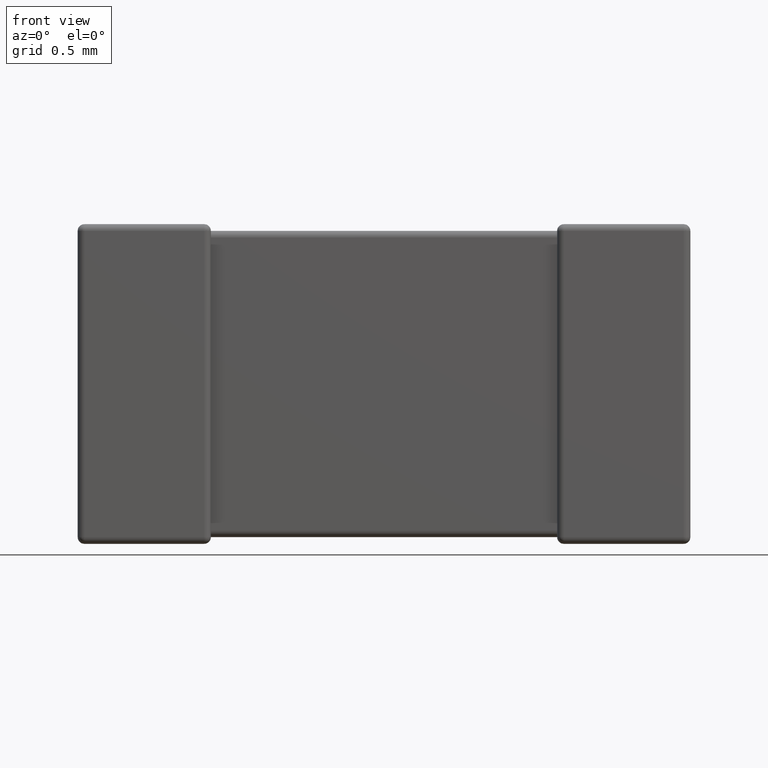
[diagram: clean part render]
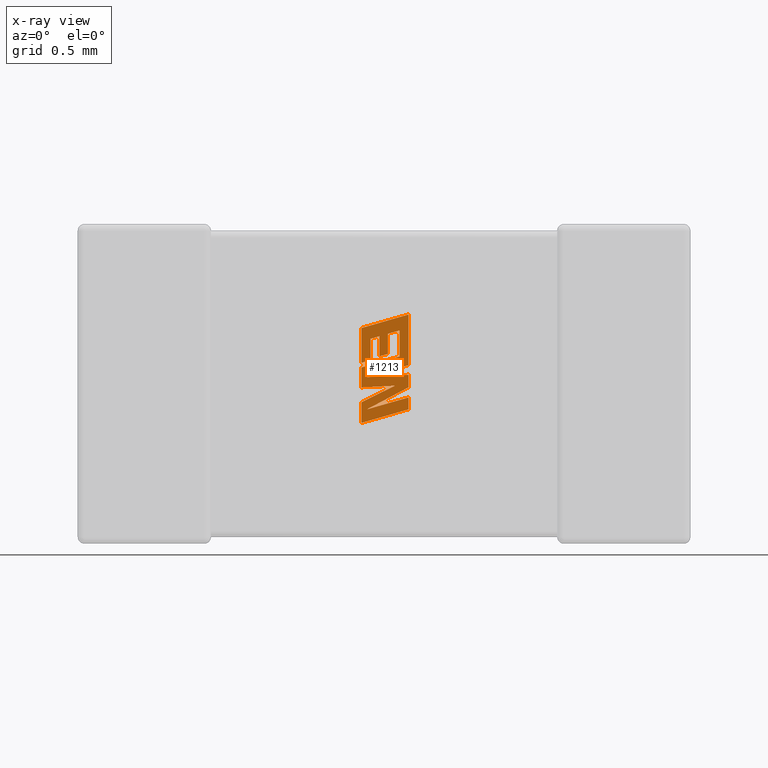
[diagram: x-ray — body ghosted, one internal face saturated and labeled with its STEP entity id]
A machine part, front view, then the same camera in x-ray: the body is ghosted and one INTERNAL B-rep face — a face not visible from any outside direction — is saturated and labeled: STEP entity #1213.
In plain terms, the highlighted planar face has unit normal (0, -1, 0).
Its self-contained STEP definition (entity closure, byte-faithful):
#6 = ORIENTED_EDGE ( 'NONE', *, *, #4470, .F. ) ;
#47 = DIRECTION ( 'NONE',  ( 0.000000000000000000, 0.000000000000000000, -1.000000000000000000 ) ) ;
#145 = CARTESIAN_POINT ( 'NONE',  ( 1.863000000000005096, 1.312559999999999949, -0.7471145326128900699 ) ) ;
#169 = CARTESIAN_POINT ( 'NONE',  ( 1.863000000000005096, 1.312559999999999949, -0.7942160640461678467 ) ) ;
#177 = EDGE_CURVE ( 'NONE', #3011, #3909, #2026, .T. ) ;
#189 = DIRECTION ( 'NONE',  ( -0.9615454294334448981, 0.000000000000000000, -0.2746459304917005517 ) ) ;
#221 = CARTESIAN_POINT ( 'NONE',  ( 1.598380152701791790, 1.312559999999999949, -0.9198648371720272721 ) ) ;
#222 = VECTOR ( 'NONE', #2563, 1000.000000000000114 ) ;
#252 = DIRECTION ( 'NONE',  ( -0.9619530280415479195, 0.000000000000000000, -0.2732148821746301914 ) ) ;
#256 = DIRECTION ( 'NONE',  ( 0.9611542233438712390, 0.000000000000000000, 0.2760118818968482213 ) ) ;
#272 = EDGE_CURVE ( 'NONE', #4404, #746, #4346, .T. ) ;
#301 = CARTESIAN_POINT ( 'NONE',  ( 1.863000000000005096, 1.312559999999999949, -0.7942160640461678467 ) ) ;
#353 = VERTEX_POINT ( 'NONE', #3344 ) ;
#359 = EDGE_CURVE ( 'NONE', #4111, #813, #3654, .T. ) ;
#363 = CARTESIAN_POINT ( 'NONE',  ( 1.863000000000005096, 1.312559999999999949, -1.043430154215027272 ) ) ;
#425 = EDGE_CURVE ( 'NONE', #529, #2454, #2204, .T. ) ;
#456 = DIRECTION ( 'NONE',  ( -0.9610674221107078363, 0.000000000000000000, -0.2763139702539094134 ) ) ;
#464 = FACE_OUTER_BOUND ( 'NONE', #934, .T. ) ;
#472 = ORIENTED_EDGE ( 'NONE', *, *, #1140, .F. ) ;
#488 = VECTOR ( 'NONE', #1474, 1000.000000000000000 ) ;
#503 = VECTOR ( 'NONE', #3671, 1000.000000000000000 ) ;
#517 = ORIENTED_EDGE ( 'NONE', *, *, #359, .F. ) ;
#529 = VERTEX_POINT ( 'NONE', #2017 ) ;
#535 = LINE ( 'NONE', #2340, #2536 ) ;
#539 = CARTESIAN_POINT ( 'NONE',  ( 1.598380152701791790, 1.312559999999999949, -0.9198648371720272721 ) ) ;
#542 = ORIENTED_EDGE ( 'NONE', *, *, #3874, .F. ) ;
#627 = DIRECTION ( 'NONE',  ( 0.9984327301130250243, 0.000000000000000000, 0.05596501978067341954 ) ) ;
#664 = ORIENTED_EDGE ( 'NONE', *, *, #3761, .F. ) ;
#681 = VERTEX_POINT ( 'NONE', #539 ) ;
#697 = EDGE_CURVE ( 'NONE', #3880, #4161, #3429, .T. ) ;
#708 = LINE ( 'NONE', #4335, #503 ) ;
#742 = EDGE_CURVE ( 'NONE', #1324, #353, #1659, .T. ) ;
#746 = VERTEX_POINT ( 'NONE', #3453 ) ;
#757 = VECTOR ( 'NONE', #256, 1000.000000000000114 ) ;
#813 = VERTEX_POINT ( 'NONE', #3660 ) ;
#854 = VERTEX_POINT ( 'NONE', #1503 ) ;
#934 = EDGE_LOOP ( 'NONE', ( #1839, #4210, #6, #1280, #2510, #3864, #2805, #1266, #4185, #2555, #2303, #3908, #517, #664, #1115, #4531, #472, #1945, #3807, #1898, #2575, #542, #2885 ) ) ;
#965 = VECTOR ( 'NONE', #4072, 1000.000000000000000 ) ;
#971 = CARTESIAN_POINT ( 'NONE',  ( 1.863000000000005096, 1.312559999999999949, -0.8486539768188343658 ) ) ;
#1018 = LINE ( 'NONE', #2380, #1981 ) ;
#1048 = VECTOR ( 'NONE', #189, 1000.000000000000227 ) ;
#1056 = CARTESIAN_POINT ( 'NONE',  ( 1.746887564039056873, 1.312559999999999949, -0.6176303792195445563 ) ) ;
#1115 = ORIENTED_EDGE ( 'NONE', *, *, #4501, .F. ) ;
#1140 = EDGE_CURVE ( 'NONE', #2047, #3880, #1479, .T. ) ;
#1200 = LINE ( 'NONE', #1592, #4580 ) ;
#1213 = ADVANCED_FACE ( 'NONE', ( #464 ), #2969, .T. ) ;
#1226 = VECTOR ( 'NONE', #3867, 1000.000000000000000 ) ;
#1246 = CARTESIAN_POINT ( 'NONE',  ( 1.746887564039056873, 1.312559999999999949, -0.7311922197814223479 ) ) ;
#1266 = ORIENTED_EDGE ( 'NONE', *, *, #3063, .F. ) ;
#1278 = CARTESIAN_POINT ( 'NONE',  ( 1.598380152701791790, 1.312559999999999949, -0.7807783690678609112 ) ) ;
#1280 = ORIENTED_EDGE ( 'NONE', *, *, #742, .F. ) ;
#1324 = VERTEX_POINT ( 'NONE', #3441 ) ;
#1390 = EDGE_CURVE ( 'NONE', #2682, #4404, #3415, .T. ) ;
#1393 = VECTOR ( 'NONE', #4456, 1000.000000000000000 ) ;
#1474 = DIRECTION ( 'NONE',  ( 0.000000000000000000, 0.000000000000000000, 1.000000000000000000 ) ) ;
#1479 = LINE ( 'NONE', #1056, #4109 ) ;
#1500 = EDGE_CURVE ( 'NONE', #3909, #1999, #3144, .T. ) ;
#1503 = CARTESIAN_POINT ( 'NONE',  ( 1.812655913532543295, 1.312559999999999949, -0.5988911467783583076 ) ) ;
#1539 = VERTEX_POINT ( 'NONE', #363 ) ;
#1592 = CARTESIAN_POINT ( 'NONE',  ( 1.863000000000005096, 1.312559999999999949, -1.043430154215027272 ) ) ;
#1609 = CARTESIAN_POINT ( 'NONE',  ( 1.697968431657682853, 1.312559999999999949, -0.7451649767832891902 ) ) ;
#1617 = CARTESIAN_POINT ( 'NONE',  ( 1.812655913532543295, 1.312559999999999949, -0.7455817617719676660 ) ) ;
#1658 = VERTEX_POINT ( 'NONE', #1866 ) ;
#1659 = LINE ( 'NONE', #4543, #757 ) ;
#1660 = LINE ( 'NONE', #2034, #2337 ) ;
#1684 = CARTESIAN_POINT ( 'NONE',  ( 1.863000000000005096, 1.312559999999999949, -0.9761861605695812960 ) ) ;
#1690 = VECTOR ( 'NONE', #3906, 1000.000000000000227 ) ;
#1740 = DIRECTION ( 'NONE',  ( 0.000000000000000000, 0.000000000000000000, 1.000000000000000000 ) ) ;
#1772 = VECTOR ( 'NONE', #2343, 1000.000000000000000 ) ;
#1839 = ORIENTED_EDGE ( 'NONE', *, *, #3334, .F. ) ;
#1866 = CARTESIAN_POINT ( 'NONE',  ( 1.697968431657682853, 1.312559999999999949, -0.6315870441368872656 ) ) ;
#1888 = DIRECTION ( 'NONE',  ( 0.000000000000000000, -1.000000000000000000, 0.000000000000000000 ) ) ;
#1898 = ORIENTED_EDGE ( 'NONE', *, *, #4484, .F. ) ;
#1945 = ORIENTED_EDGE ( 'NONE', *, *, #4301, .F. ) ;
#1981 = VECTOR ( 'NONE', #3836, 999.9999999999998863 ) ;
#1999 = VERTEX_POINT ( 'NONE', #2840 ) ;
#2017 = CARTESIAN_POINT ( 'NONE',  ( 1.598380152701791790, 1.312559999999999949, -1.003449846206255325 ) ) ;
#2026 = LINE ( 'NONE', #2416, #2031 ) ;
#2031 = VECTOR ( 'NONE', #627, 1000.000000000000114 ) ;
#2034 = CARTESIAN_POINT ( 'NONE',  ( 1.697968431657682853, 1.312559999999999949, -0.7451649767832891902 ) ) ;
#2047 = VERTEX_POINT ( 'NONE', #3898 ) ;
#2095 = LINE ( 'NONE', #221, #2778 ) ;
#2150 = CARTESIAN_POINT ( 'NONE',  ( 1.598380152701791790, 1.312559999999999949, -1.119510311478468134 ) ) ;
#2200 = CARTESIAN_POINT ( 'NONE',  ( 1.787427971559525597, 1.312559999999999949, -0.9096883145256312586 ) ) ;
#2204 = LINE ( 'NONE', #3097, #222 ) ;
#2214 = VERTEX_POINT ( 'NONE', #3723 ) ;
#2248 = CARTESIAN_POINT ( 'NONE',  ( 1.598380152701791790, 1.312559999999999949, -0.8071726061217919801 ) ) ;
#2251 = CARTESIAN_POINT ( 'NONE',  ( 0.08716339829042507592, 1.312559999999999949, 0.004072901265455560610 ) ) ;
#2303 = ORIENTED_EDGE ( 'NONE', *, *, #1390, .F. ) ;
#2337 = VECTOR ( 'NONE', #3132, 1000.000000000000000 ) ;
#2340 = CARTESIAN_POINT ( 'NONE',  ( 1.648749181899789695, 1.312559999999999949, -0.7664725059161028309 ) ) ;
#2343 = DIRECTION ( 'NONE',  ( -0.8843386665637650301, 0.000000000000000000, -0.4668459304955137057 ) ) ;
#2352 = CARTESIAN_POINT ( 'NONE',  ( 1.648749181899789695, 1.312559999999999949, -0.6459089993731549351 ) ) ;
#2362 = CARTESIAN_POINT ( 'NONE',  ( 1.863000000000005096, 1.312559999999999949, -0.8486539768188343658 ) ) ;
#2380 = CARTESIAN_POINT ( 'NONE',  ( 1.787427971559525597, 1.312559999999999949, -0.9096883145256312586 ) ) ;
#2406 = CARTESIAN_POINT ( 'NONE',  ( 1.746887564039056873, 1.312559999999999949, -0.7311922197814223479 ) ) ;
#2416 = CARTESIAN_POINT ( 'NONE',  ( 1.627415905431753851, 1.312559999999999949, -0.8618591413881407926 ) ) ;
#2420 = VECTOR ( 'NONE', #4188, 1000.000000000000000 ) ;
#2437 = CARTESIAN_POINT ( 'NONE',  ( 1.598380152701791790, 1.312559999999999949, -0.7807783690678609112 ) ) ;
#2454 = VERTEX_POINT ( 'NONE', #2200 ) ;
#2510 = ORIENTED_EDGE ( 'NONE', *, *, #4095, .F. ) ;
#2536 = VECTOR ( 'NONE', #252, 999.9999999999998863 ) ;
#2540 = DIRECTION ( 'NONE',  ( 0.9610029908221285888, 0.000000000000000000, 0.2765379750249931656 ) ) ;
#2555 = ORIENTED_EDGE ( 'NONE', *, *, #272, .F. ) ;
#2563 = DIRECTION ( 'NONE',  ( 0.8958676361826827250, 0.000000000000000000, 0.4443210308329466618 ) ) ;
#2575 = ORIENTED_EDGE ( 'NONE', *, *, #3578, .F. ) ;
#2619 = VECTOR ( 'NONE', #3375, 1000.000000000000000 ) ;
#2646 = CARTESIAN_POINT ( 'NONE',  ( 1.812655913532543295, 1.312559999999999949, -0.7455817617719676660 ) ) ;
#2670 = AXIS2_PLACEMENT_3D ( 'NONE', #2251, #1888, #3705 ) ;
#2677 = CARTESIAN_POINT ( 'NONE',  ( 1.598380152701791790, 1.312559999999999949, -0.5852860939098785131 ) ) ;
#2682 = VERTEX_POINT ( 'NONE', #1278 ) ;
#2687 = VECTOR ( 'NONE', #3783, 1000.000000000000114 ) ;
#2778 = VECTOR ( 'NONE', #1740, 1000.000000000000000 ) ;
#2780 = DIRECTION ( 'NONE',  ( 0.9610853065513847993, 0.000000000000000000, 0.2762517575166369421 ) ) ;
#2787 = VERTEX_POINT ( 'NONE', #169 ) ;
#2795 = EDGE_CURVE ( 'NONE', #1539, #2214, #1200, .T. ) ;
#2805 = ORIENTED_EDGE ( 'NONE', *, *, #177, .F. ) ;
#2840 = CARTESIAN_POINT ( 'NONE',  ( 1.863000000000005096, 1.312559999999999949, -0.9191992616065969290 ) ) ;
#2873 = LINE ( 'NONE', #301, #1690 ) ;
#2885 = ORIENTED_EDGE ( 'NONE', *, *, #425, .F. ) ;
#2905 = CARTESIAN_POINT ( 'NONE',  ( 1.697968431657682853, 1.312559999999999949, -0.6315870441368872656 ) ) ;
#2947 = CARTESIAN_POINT ( 'NONE',  ( 1.598380152701791790, 1.312559999999999949, -0.5852860939098785131 ) ) ;
#2969 = PLANE ( 'NONE',  #2670 ) ;
#3011 = VERTEX_POINT ( 'NONE', #4212 ) ;
#3063 = EDGE_CURVE ( 'NONE', #2787, #3011, #2873, .T. ) ;
#3097 = CARTESIAN_POINT ( 'NONE',  ( 1.598380152701791790, 1.312559999999999949, -1.003449846206255325 ) ) ;
#3129 = CARTESIAN_POINT ( 'NONE',  ( 1.648749181899789695, 1.312559999999999949, -0.6459089993731549351 ) ) ;
#3132 = DIRECTION ( 'NONE',  ( 0.000000000000000000, 0.000000000000000000, 1.000000000000000000 ) ) ;
#3144 = LINE ( 'NONE', #2362, #1226 ) ;
#3159 = LINE ( 'NONE', #4162, #4552 ) ;
#3175 = EDGE_CURVE ( 'NONE', #3838, #854, #3710, .T. ) ;
#3204 = VECTOR ( 'NONE', #3844, 1000.000000000000000 ) ;
#3308 = EDGE_CURVE ( 'NONE', #813, #2682, #535, .T. ) ;
#3334 = EDGE_CURVE ( 'NONE', #2214, #529, #4374, .T. ) ;
#3343 = VERTEX_POINT ( 'NONE', #2248 ) ;
#3344 = CARTESIAN_POINT ( 'NONE',  ( 1.863000000000005096, 1.312559999999999949, -0.9761861605695812960 ) ) ;
#3375 = DIRECTION ( 'NONE',  ( 0.000000000000000000, 0.000000000000000000, 1.000000000000000000 ) ) ;
#3415 = LINE ( 'NONE', #2437, #3204 ) ;
#3429 = LINE ( 'NONE', #1246, #1048 ) ;
#3441 = CARTESIAN_POINT ( 'NONE',  ( 1.626281413472586257, 1.312559999999999949, -1.044163953269784839 ) ) ;
#3453 = CARTESIAN_POINT ( 'NONE',  ( 1.863000000000005096, 1.312559999999999949, -0.5091391542831160688 ) ) ;
#3578 = EDGE_CURVE ( 'NONE', #681, #3343, #2095, .T. ) ;
#3654 = LINE ( 'NONE', #2352, #965 ) ;
#3660 = CARTESIAN_POINT ( 'NONE',  ( 1.648749181899789695, 1.312559999999999949, -0.7664725059161028309 ) ) ;
#3671 = DIRECTION ( 'NONE',  ( -0.9617234872620624708, 0.000000000000000000, -0.2740217765953968376 ) ) ;
#3705 = DIRECTION ( 'NONE',  ( 0.000000000000000000, 0.000000000000000000, -1.000000000000000000 ) ) ;
#3710 = LINE ( 'NONE', #2646, #2619 ) ;
#3723 = CARTESIAN_POINT ( 'NONE',  ( 1.598380152701791790, 1.312559999999999949, -1.119510311478468134 ) ) ;
#3761 = EDGE_CURVE ( 'NONE', #1658, #4111, #4314, .T. ) ;
#3783 = DIRECTION ( 'NONE',  ( -0.9601763114327565019, 0.000000000000000000, -0.2793947940878392933 ) ) ;
#3807 = ORIENTED_EDGE ( 'NONE', *, *, #3175, .F. ) ;
#3829 = EDGE_CURVE ( 'NONE', #746, #2787, #4521, .T. ) ;
#3830 = CARTESIAN_POINT ( 'NONE',  ( 1.863000000000005096, 1.312559999999999949, -0.9191992616065969290 ) ) ;
#3836 = DIRECTION ( 'NONE',  ( -0.9985542843760949472, 0.000000000000000000, -0.05375259206908061804 ) ) ;
#3838 = VERTEX_POINT ( 'NONE', #1617 ) ;
#3844 = DIRECTION ( 'NONE',  ( 0.000000000000000000, 0.000000000000000000, 1.000000000000000000 ) ) ;
#3856 = LINE ( 'NONE', #1684, #2420 ) ;
#3864 = ORIENTED_EDGE ( 'NONE', *, *, #1500, .F. ) ;
#3867 = DIRECTION ( 'NONE',  ( 0.000000000000000000, 0.000000000000000000, -1.000000000000000000 ) ) ;
#3874 = EDGE_CURVE ( 'NONE', #2454, #681, #1018, .T. ) ;
#3880 = VERTEX_POINT ( 'NONE', #2406 ) ;
#3898 = CARTESIAN_POINT ( 'NONE',  ( 1.746887564039056873, 1.312559999999999949, -0.6176303792195445563 ) ) ;
#3906 = DIRECTION ( 'NONE',  ( -0.9611638845408969622, 0.000000000000000000, -0.2759782365590690012 ) ) ;
#3908 = ORIENTED_EDGE ( 'NONE', *, *, #3308, .F. ) ;
#3909 = VERTEX_POINT ( 'NONE', #971 ) ;
#4072 = DIRECTION ( 'NONE',  ( 0.000000000000000000, 0.000000000000000000, -1.000000000000000000 ) ) ;
#4095 = EDGE_CURVE ( 'NONE', #1999, #1324, #4232, .T. ) ;
#4109 = VECTOR ( 'NONE', #47, 1000.000000000000000 ) ;
#4111 = VERTEX_POINT ( 'NONE', #3129 ) ;
#4161 = VERTEX_POINT ( 'NONE', #1609 ) ;
#4162 = CARTESIAN_POINT ( 'NONE',  ( 1.598380152701791790, 1.312559999999999949, -0.8071726061217919801 ) ) ;
#4185 = ORIENTED_EDGE ( 'NONE', *, *, #3829, .F. ) ;
#4188 = DIRECTION ( 'NONE',  ( 0.000000000000000000, 0.000000000000000000, -1.000000000000000000 ) ) ;
#4210 = ORIENTED_EDGE ( 'NONE', *, *, #2795, .F. ) ;
#4212 = CARTESIAN_POINT ( 'NONE',  ( 1.627415905431753851, 1.312559999999999949, -0.8618591413881407926 ) ) ;
#4232 = LINE ( 'NONE', #3830, #1772 ) ;
#4300 = VECTOR ( 'NONE', #2540, 1000.000000000000114 ) ;
#4301 = EDGE_CURVE ( 'NONE', #854, #2047, #708, .T. ) ;
#4314 = LINE ( 'NONE', #2905, #2687 ) ;
#4335 = CARTESIAN_POINT ( 'NONE',  ( 1.812655913532543295, 1.312559999999999949, -0.5988911467783583076 ) ) ;
#4346 = LINE ( 'NONE', #2947, #4300 ) ;
#4374 = LINE ( 'NONE', #2150, #488 ) ;
#4404 = VERTEX_POINT ( 'NONE', #2677 ) ;
#4456 = DIRECTION ( 'NONE',  ( 0.000000000000000000, 0.000000000000000000, -1.000000000000000000 ) ) ;
#4470 = EDGE_CURVE ( 'NONE', #353, #1539, #3856, .T. ) ;
#4484 = EDGE_CURVE ( 'NONE', #3343, #3838, #3159, .T. ) ;
#4501 = EDGE_CURVE ( 'NONE', #4161, #1658, #1660, .T. ) ;
#4521 = LINE ( 'NONE', #145, #1393 ) ;
#4531 = ORIENTED_EDGE ( 'NONE', *, *, #697, .F. ) ;
#4543 = CARTESIAN_POINT ( 'NONE',  ( 1.626281413472586257, 1.312559999999999949, -1.044163953269784839 ) ) ;
#4552 = VECTOR ( 'NONE', #2780, 1000.000000000000114 ) ;
#4580 = VECTOR ( 'NONE', #456, 1000.000000000000227 ) ;